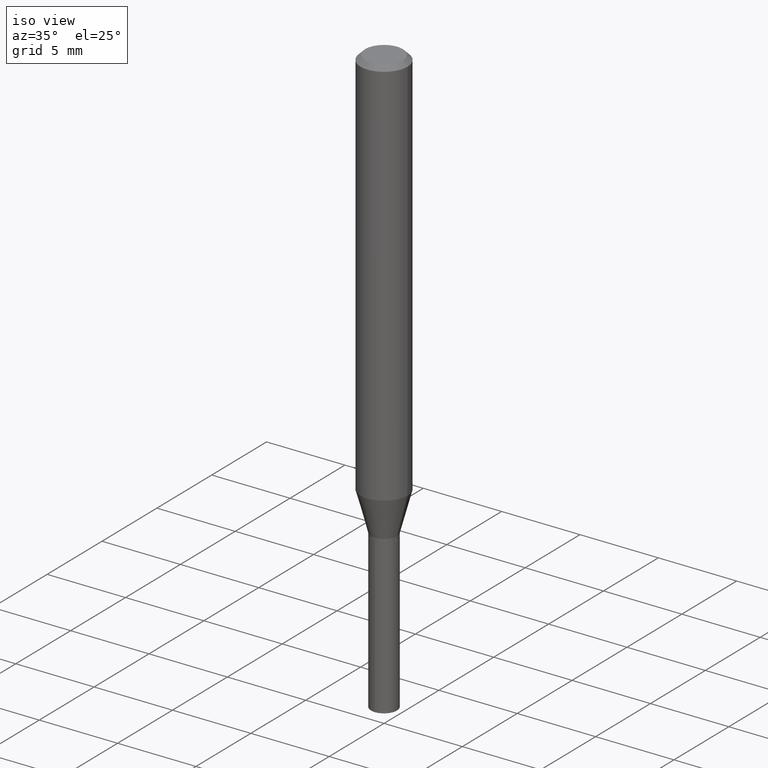
[diagram: clean part render]
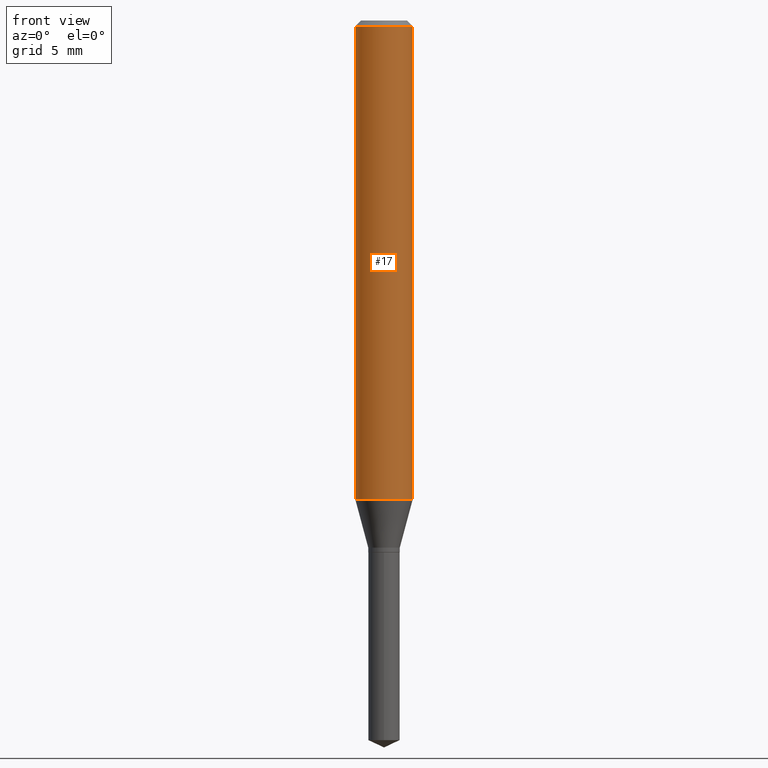
[diagram: tour spotlight — one face highlighted and labeled with its STEP entity id]
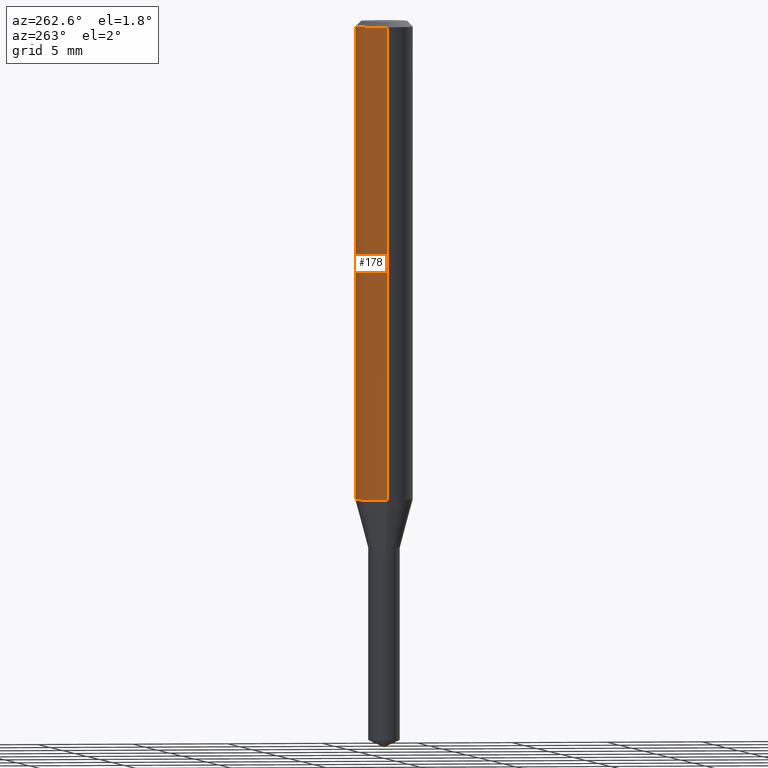
[diagram: tour spotlight — one face highlighted and labeled with its STEP entity id]
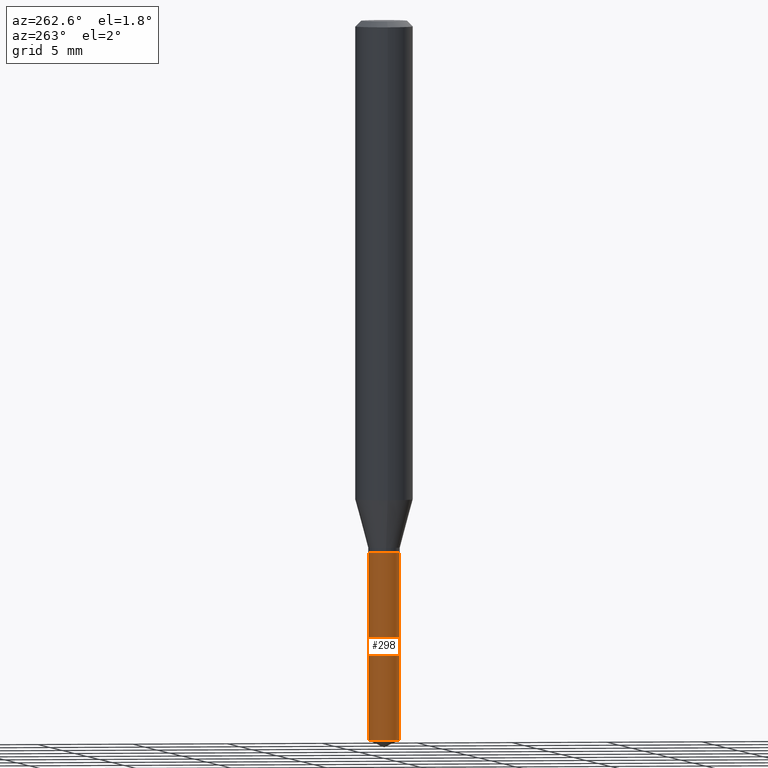
[diagram: tour spotlight — one face highlighted and labeled with its STEP entity id]
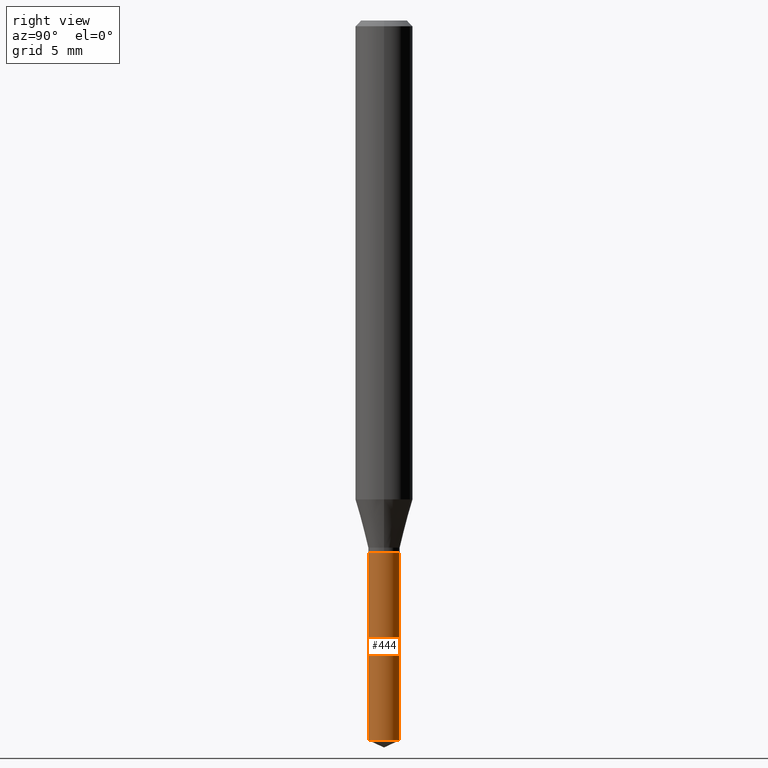
[diagram: tour spotlight — one face highlighted and labeled with its STEP entity id]
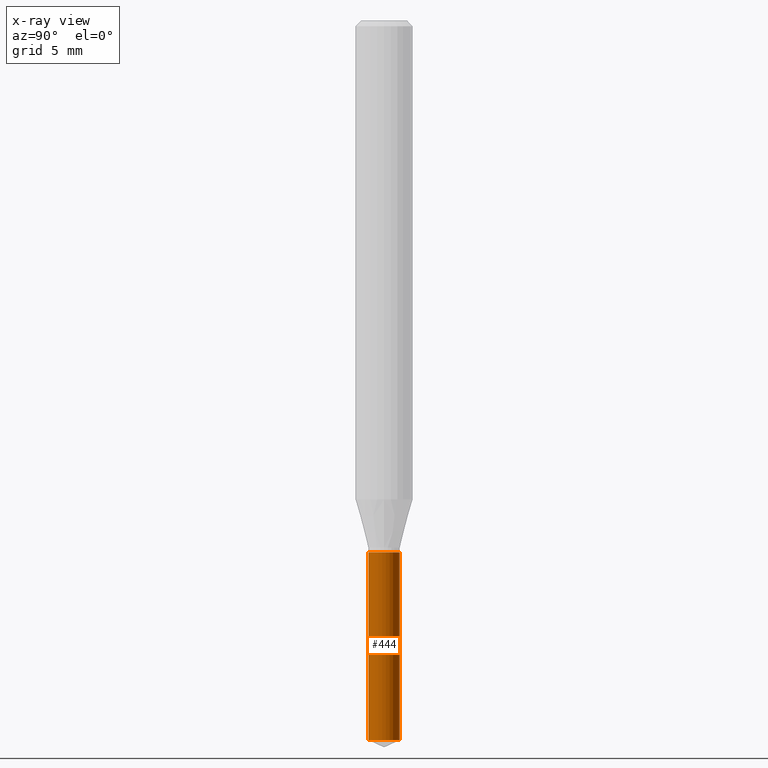
[diagram: x-ray of the same camera — body ghosted, this tour face saturated]
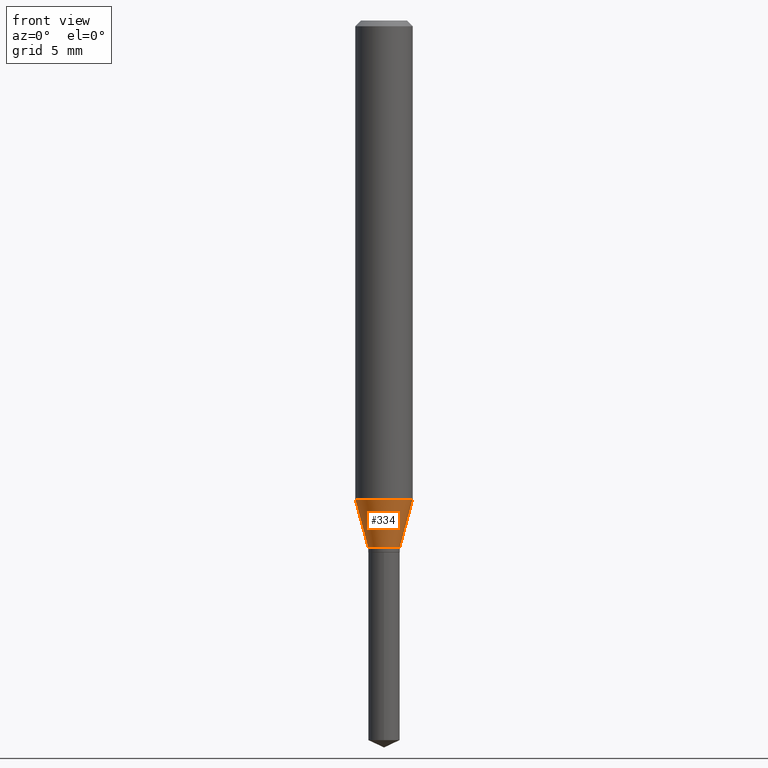
[diagram: tour spotlight — one face highlighted and labeled with its STEP entity id]
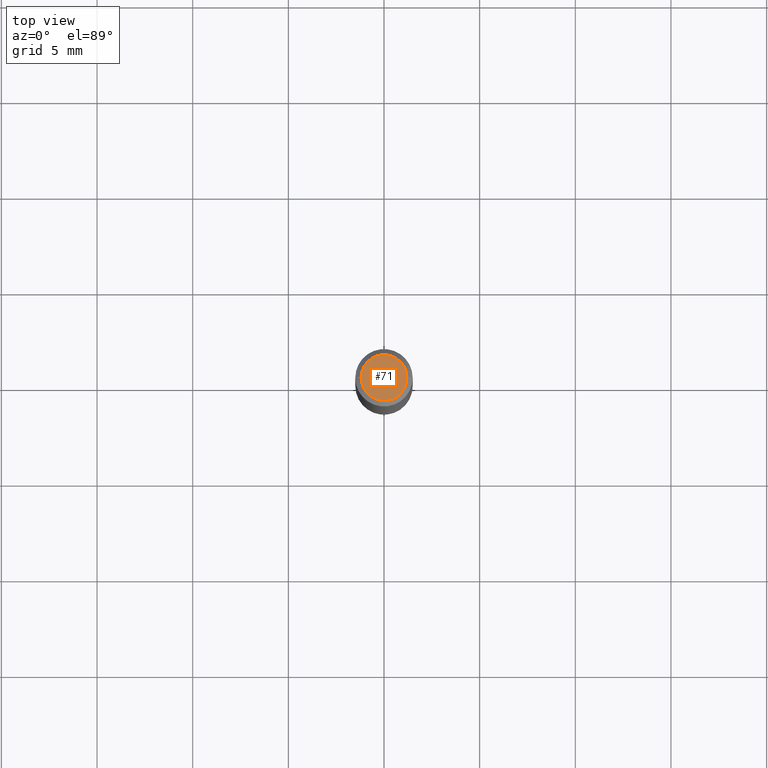
[diagram: tour spotlight — one face highlighted and labeled with its STEP entity id]
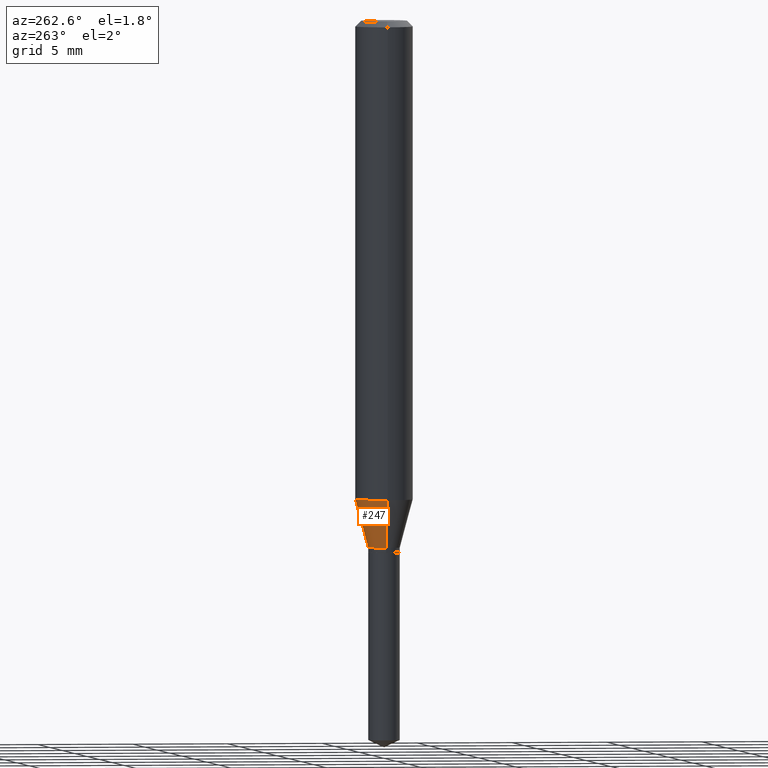
[diagram: tour spotlight — one face highlighted and labeled with its STEP entity id]
A machine part: a face-by-face anatomy tour. The part has 17 B-rep faces; the first image is the clean iso view, then the 7 largest visible faces are spotlighted one at a time (largest first), each with its STEP entity span.

Face 1 — front view, entity #17. In plain terms, the highlighted cylindrical surface (edge-blend (fillet) strip) has radius 1.4999 mm, axis along (-0, 0, 1).
Definition (entity closure, byte-faithful):
#5 = CARTESIAN_POINT ( 'NONE',  ( 0.05905000000000006077, -4.123439461173744764E-16, 2.879382386107503023E-30 ) ) ;
#7 = EDGE_CURVE ( 'NONE', #287, #37, #126, .T. ) ;
#9 = DIRECTION ( 'NONE',  ( -2.445468806185136877E-29, 3.491481338843145188E-15, 1.000000000000000000 ) ) ;
#17 = ADVANCED_FACE ( 'NONE', ( #76 ), #235, .T. ) ;
#37 = VERTEX_POINT ( 'NONE', #346 ) ;
#42 = EDGE_CURVE ( 'NONE', #75, #37, #423, .T. ) ;
#62 = CARTESIAN_POINT ( 'NONE',  ( 2.410288416802661241E-29, -3.441253066574253877E-15, -0.9856140510590458703 ) ) ;
#75 = VERTEX_POINT ( 'NONE', #275 ) ;
#76 = FACE_OUTER_BOUND ( 'NONE', #205, .T. ) ;
#81 = VECTOR ( 'NONE', #234, 39.37007874015748143 ) ;
#101 = AXIS2_PLACEMENT_3D ( 'NONE', #62, #290, #214 ) ;
#113 = CARTESIAN_POINT ( 'NONE',  ( -0.05904999999999999832, -1.321668245126655521E-15, -0.01181000000000007218 ) ) ;
#126 = CIRCLE ( 'NONE', #237, 0.05904999999999999832 ) ;
#141 = ORIENTED_EDGE ( 'NONE', *, *, #7, .F. ) ;
#205 = EDGE_LOOP ( 'NONE', ( #238, #422, #392, #141 ) ) ;
#214 = DIRECTION ( 'NONE',  ( 1.000000000000000000, -6.982962677686266711E-15, 0.000000000000000000 ) ) ;
#234 = DIRECTION ( 'NONE',  ( -2.445468806185136877E-29, 3.491481338843145188E-15, 1.000000000000000000 ) ) ;
#235 = CYLINDRICAL_SURFACE ( 'NONE', #481, 0.05905000000000006077 ) ;
#237 = AXIS2_PLACEMENT_3D ( 'NONE', #268, #461, #271 ) ;
#238 = ORIENTED_EDGE ( 'NONE', *, *, #314, .F. ) ;
#239 = DIRECTION ( 'NONE',  ( 1.000000000000000000, -6.982962677686266711E-15, 4.876176775795935793E-29 ) ) ;
#263 = CARTESIAN_POINT ( 'NONE',  ( -0.05905000000000011628, -3.021677581107914384E-15, -0.9856140510590458703 ) ) ;
#268 = CARTESIAN_POINT ( 'NONE',  ( 2.888098660104664204E-31, -4.123439461173780263E-17, -0.01181000000000007218 ) ) ;
#271 = DIRECTION ( 'NONE',  ( 1.000000000000000000, -6.982962677686266711E-15, 0.000000000000000000 ) ) ;
#275 = CARTESIAN_POINT ( 'NONE',  ( 0.05905000000000011628, -3.853597012691628798E-15, -0.9856140510590458703 ) ) ;
#287 = VERTEX_POINT ( 'NONE', #113 ) ;
#289 = EDGE_CURVE ( 'NONE', #427, #75, #335, .T. ) ;
#290 = DIRECTION ( 'NONE',  ( -2.445468806185136597E-29, 3.491481338843145583E-15, 1.000000000000000000 ) ) ;
#314 = EDGE_CURVE ( 'NONE', #427, #287, #318, .T. ) ;
#318 = LINE ( 'NONE', #391, #81 ) ;
#335 = CIRCLE ( 'NONE', #101, 0.05905000000000011628 ) ;
#346 = CARTESIAN_POINT ( 'NONE',  ( 0.05904999999999999832, -4.535783407291118600E-16, -0.01181000000000007218 ) ) ;
#380 = CARTESIAN_POINT ( 'NONE',  ( 0.000000000000000000, 0.000000000000000000, 0.000000000000000000 ) ) ;
#391 = CARTESIAN_POINT ( 'NONE',  ( -0.05905000000000006077, 4.195754854663395916E-16, -2.904631170795524694E-30 ) ) ;
#392 = ORIENTED_EDGE ( 'NONE', *, *, #42, .T. ) ;
#422 = ORIENTED_EDGE ( 'NONE', *, *, #289, .T. ) ;
#423 = LINE ( 'NONE', #5, #467 ) ;
#427 = VERTEX_POINT ( 'NONE', #263 ) ;
#457 = DIRECTION ( 'NONE',  ( -2.445468806185136597E-29, 3.491481338843145583E-15, 1.000000000000000000 ) ) ;
#461 = DIRECTION ( 'NONE',  ( -2.445468806185136597E-29, 3.491481338843145583E-15, 1.000000000000000000 ) ) ;
#467 = VECTOR ( 'NONE', #9, 39.37007874015748143 ) ;
#481 = AXIS2_PLACEMENT_3D ( 'NONE', #380, #457, #239 ) ;

Face 2 — auxiliary view, entity #178. In plain terms, the highlighted cylindrical surface (edge-blend (fillet) strip) has radius 1.4999 mm, axis along (-0, 0, 1).
Definition (entity closure, byte-faithful):
#5 = CARTESIAN_POINT ( 'NONE',  ( 0.05905000000000006077, -4.123439461173744764E-16, 2.879382386107503023E-30 ) ) ;
#9 = DIRECTION ( 'NONE',  ( -2.445468806185136877E-29, 3.491481338843145188E-15, 1.000000000000000000 ) ) ;
#13 = CIRCLE ( 'NONE', #406, 0.05905000000000011628 ) ;
#21 = EDGE_CURVE ( 'NONE', #37, #287, #54, .T. ) ;
#29 = AXIS2_PLACEMENT_3D ( 'NONE', #388, #278, #35 ) ;
#35 = DIRECTION ( 'NONE',  ( 1.000000000000000000, -6.982962677686266711E-15, 0.000000000000000000 ) ) ;
#37 = VERTEX_POINT ( 'NONE', #346 ) ;
#42 = EDGE_CURVE ( 'NONE', #75, #37, #423, .T. ) ;
#51 = CARTESIAN_POINT ( 'NONE',  ( 2.410288416802661241E-29, -3.441253066574253877E-15, -0.9856140510590458703 ) ) ;
#52 = ORIENTED_EDGE ( 'NONE', *, *, #42, .F. ) ;
#54 = CIRCLE ( 'NONE', #29, 0.05904999999999999832 ) ;
#75 = VERTEX_POINT ( 'NONE', #275 ) ;
#81 = VECTOR ( 'NONE', #234, 39.37007874015748143 ) ;
#84 = CARTESIAN_POINT ( 'NONE',  ( 0.000000000000000000, 0.000000000000000000, 0.000000000000000000 ) ) ;
#113 = CARTESIAN_POINT ( 'NONE',  ( -0.05904999999999999832, -1.321668245126655521E-15, -0.01181000000000007218 ) ) ;
#124 = DIRECTION ( 'NONE',  ( -2.445468806185136597E-29, 3.491481338843145583E-15, 1.000000000000000000 ) ) ;
#135 = CYLINDRICAL_SURFACE ( 'NONE', #443, 0.05905000000000006077 ) ;
#158 = EDGE_CURVE ( 'NONE', #75, #427, #13, .T. ) ;
#159 = DIRECTION ( 'NONE',  ( -2.445468806185136597E-29, 3.491481338843145583E-15, 1.000000000000000000 ) ) ;
#178 = ADVANCED_FACE ( 'NONE', ( #463 ), #135, .T. ) ;
#197 = ORIENTED_EDGE ( 'NONE', *, *, #21, .F. ) ;
#234 = DIRECTION ( 'NONE',  ( -2.445468806185136877E-29, 3.491481338843145188E-15, 1.000000000000000000 ) ) ;
#263 = CARTESIAN_POINT ( 'NONE',  ( -0.05905000000000011628, -3.021677581107914384E-15, -0.9856140510590458703 ) ) ;
#275 = CARTESIAN_POINT ( 'NONE',  ( 0.05905000000000011628, -3.853597012691628798E-15, -0.9856140510590458703 ) ) ;
#277 = ORIENTED_EDGE ( 'NONE', *, *, #314, .T. ) ;
#278 = DIRECTION ( 'NONE',  ( -2.445468806185136597E-29, 3.491481338843145583E-15, 1.000000000000000000 ) ) ;
#279 = DIRECTION ( 'NONE',  ( 1.000000000000000000, -6.982962677686266711E-15, 4.876176775795935793E-29 ) ) ;
#287 = VERTEX_POINT ( 'NONE', #113 ) ;
#314 = EDGE_CURVE ( 'NONE', #427, #287, #318, .T. ) ;
#318 = LINE ( 'NONE', #391, #81 ) ;
#346 = CARTESIAN_POINT ( 'NONE',  ( 0.05904999999999999832, -4.535783407291118600E-16, -0.01181000000000007218 ) ) ;
#356 = ORIENTED_EDGE ( 'NONE', *, *, #158, .T. ) ;
#377 = EDGE_LOOP ( 'NONE', ( #356, #277, #197, #52 ) ) ;
#388 = CARTESIAN_POINT ( 'NONE',  ( 2.888098660104664204E-31, -4.123439461173780263E-17, -0.01181000000000007218 ) ) ;
#391 = CARTESIAN_POINT ( 'NONE',  ( -0.05905000000000006077, 4.195754854663395916E-16, -2.904631170795524694E-30 ) ) ;
#406 = AXIS2_PLACEMENT_3D ( 'NONE', #51, #124, #473 ) ;
#423 = LINE ( 'NONE', #5, #467 ) ;
#427 = VERTEX_POINT ( 'NONE', #263 ) ;
#443 = AXIS2_PLACEMENT_3D ( 'NONE', #84, #159, #279 ) ;
#463 = FACE_OUTER_BOUND ( 'NONE', #377, .T. ) ;
#467 = VECTOR ( 'NONE', #9, 39.37007874015748143 ) ;
#473 = DIRECTION ( 'NONE',  ( 1.000000000000000000, -6.982962677686266711E-15, 0.000000000000000000 ) ) ;

Face 3 — auxiliary view, entity #298. In plain terms, the highlighted cylindrical surface (edge-blend (fillet) strip) has radius 0.8255 mm, axis along (-0, 0, 1).
Definition (entity closure, byte-faithful):
#27 = CARTESIAN_POINT ( 'NONE',  ( 2.676565608369631794E-29, -3.821426325363822773E-15, -1.094499999999999806 ) ) ;
#28 = VERTEX_POINT ( 'NONE', #195 ) ;
#31 = DIRECTION ( 'NONE',  ( -2.445402730703145379E-29, 3.491575962694140016E-15, 1.000000000000000000 ) ) ;
#47 = ORIENTED_EDGE ( 'NONE', *, *, #229, .F. ) ;
#66 = FACE_OUTER_BOUND ( 'NONE', #476, .T. ) ;
#79 = DIRECTION ( 'NONE',  ( -2.445402730703145379E-29, 3.491575962694140016E-15, 1.000000000000000000 ) ) ;
#132 = DIRECTION ( 'NONE',  ( -2.445402730703145379E-29, 3.491575962694140016E-15, 1.000000000000000000 ) ) ;
#146 = DIRECTION ( 'NONE',  ( -6.982962677686265922E-15, -1.000000000000000000, 4.202843067175789324E-15 ) ) ;
#147 = LINE ( 'NONE', #297, #264 ) ;
#151 = ORIENTED_EDGE ( 'NONE', *, *, #410, .T. ) ;
#172 = CARTESIAN_POINT ( 'NONE',  ( -2.269462870247674594E-16, -0.03250000000000517059, -1.480945001109962522 ) ) ;
#173 = EDGE_CURVE ( 'NONE', #186, #28, #196, .T. ) ;
#174 = DIRECTION ( 'NONE',  ( -6.982962677686265922E-15, -1.000000000000000000, 0.000000000000000000 ) ) ;
#186 = VERTEX_POINT ( 'NONE', #245 ) ;
#195 = CARTESIAN_POINT ( 'NONE',  ( -2.269462870247768764E-16, -0.03250000000000381750, -1.094499999999999806 ) ) ;
#196 = CIRCLE ( 'NONE', #262, 0.03250000000000000111 ) ;
#208 = CARTESIAN_POINT ( 'NONE',  ( 2.676565608369631794E-29, -3.821426325363822773E-15, -1.094499999999999806 ) ) ;
#226 = VERTEX_POINT ( 'NONE', #172 ) ;
#228 = DIRECTION ( 'NONE',  ( -2.445402730703145379E-29, 3.491575962694140016E-15, 1.000000000000000000 ) ) ;
#229 = EDGE_CURVE ( 'NONE', #333, #186, #252, .T. ) ;
#232 = EDGE_CURVE ( 'NONE', #333, #226, #349, .T. ) ;
#245 = CARTESIAN_POINT ( 'NONE',  ( 2.309263891220687573E-16, 0.03249999999999617778, -1.094500000000000028 ) ) ;
#252 = LINE ( 'NONE', #462, #305 ) ;
#262 = AXIS2_PLACEMENT_3D ( 'NONE', #208, #132, #420 ) ;
#264 = VECTOR ( 'NONE', #448, 39.37007874015748143 ) ;
#297 = CARTESIAN_POINT ( 'NONE',  ( -2.269462870247768764E-16, -0.03250000000000381750, -1.094499999999999806 ) ) ;
#298 = ADVANCED_FACE ( 'NONE', ( #66 ), #401, .T. ) ;
#300 = AXIS2_PLACEMENT_3D ( 'NONE', #407, #228, #174 ) ;
#305 = VECTOR ( 'NONE', #79, 39.37007874015748143 ) ;
#327 = ORIENTED_EDGE ( 'NONE', *, *, #232, .T. ) ;
#333 = VERTEX_POINT ( 'NONE', #421 ) ;
#349 = CIRCLE ( 'NONE', #300, 0.03250000000000000111 ) ;
#401 = CYLINDRICAL_SURFACE ( 'NONE', #412, 0.03250000000000000111 ) ;
#407 = CARTESIAN_POINT ( 'NONE',  ( 3.621579269350513779E-29, -5.170728402142678552E-15, -1.480945001109962522 ) ) ;
#410 = EDGE_CURVE ( 'NONE', #226, #28, #147, .T. ) ;
#412 = AXIS2_PLACEMENT_3D ( 'NONE', #27, #31, #146 ) ;
#420 = DIRECTION ( 'NONE',  ( -6.982962677686265922E-15, -1.000000000000000000, 4.202843067175789324E-15 ) ) ;
#421 = CARTESIAN_POINT ( 'NONE',  ( 2.309263891220687573E-16, 0.03249999999999483163, -1.480945001109962522 ) ) ;
#448 = DIRECTION ( 'NONE',  ( -2.445402730703145379E-29, 3.491575962694140016E-15, 1.000000000000000000 ) ) ;
#460 = ORIENTED_EDGE ( 'NONE', *, *, #173, .F. ) ;
#462 = CARTESIAN_POINT ( 'NONE',  ( 2.309263891220592910E-16, 0.03249999999999617778, -1.094500000000000028 ) ) ;
#476 = EDGE_LOOP ( 'NONE', ( #47, #327, #151, #460 ) ) ;

Face 4 — right view, entity #444. An x-ray twin of the same camera follows (body ghosted, this face saturated) — the face is partly hidden behind the body. In plain terms, the highlighted cylindrical surface (edge-blend (fillet) strip) has radius 0.8255 mm, axis along (-0, 0, 1).
Definition (entity closure, byte-faithful):
#4 = CARTESIAN_POINT ( 'NONE',  ( 3.621579269350513779E-29, -5.170728402142678552E-15, -1.480945001109962522 ) ) ;
#14 = AXIS2_PLACEMENT_3D ( 'NONE', #331, #188, #299 ) ;
#26 = ORIENTED_EDGE ( 'NONE', *, *, #229, .T. ) ;
#28 = VERTEX_POINT ( 'NONE', #195 ) ;
#74 = DIRECTION ( 'NONE',  ( -2.445402730703145379E-29, 3.491575962694140016E-15, 1.000000000000000000 ) ) ;
#79 = DIRECTION ( 'NONE',  ( -2.445402730703145379E-29, 3.491575962694140016E-15, 1.000000000000000000 ) ) ;
#121 = DIRECTION ( 'NONE',  ( -2.445402730703145379E-29, 3.491575962694140016E-15, 1.000000000000000000 ) ) ;
#127 = CIRCLE ( 'NONE', #259, 0.03250000000000000111 ) ;
#142 = ORIENTED_EDGE ( 'NONE', *, *, #410, .F. ) ;
#147 = LINE ( 'NONE', #297, #264 ) ;
#172 = CARTESIAN_POINT ( 'NONE',  ( -2.269462870247674594E-16, -0.03250000000000517059, -1.480945001109962522 ) ) ;
#186 = VERTEX_POINT ( 'NONE', #245 ) ;
#187 = CYLINDRICAL_SURFACE ( 'NONE', #14, 0.03250000000000000111 ) ;
#188 = DIRECTION ( 'NONE',  ( -2.445402730703145379E-29, 3.491575962694140016E-15, 1.000000000000000000 ) ) ;
#195 = CARTESIAN_POINT ( 'NONE',  ( -2.269462870247768764E-16, -0.03250000000000381750, -1.094499999999999806 ) ) ;
#210 = CARTESIAN_POINT ( 'NONE',  ( 2.676565608369631794E-29, -3.821426325363822773E-15, -1.094499999999999806 ) ) ;
#226 = VERTEX_POINT ( 'NONE', #172 ) ;
#229 = EDGE_CURVE ( 'NONE', #333, #186, #252, .T. ) ;
#244 = EDGE_CURVE ( 'NONE', #28, #186, #430, .T. ) ;
#245 = CARTESIAN_POINT ( 'NONE',  ( 2.309263891220687573E-16, 0.03249999999999617778, -1.094500000000000028 ) ) ;
#252 = LINE ( 'NONE', #462, #305 ) ;
#259 = AXIS2_PLACEMENT_3D ( 'NONE', #4, #121, #416 ) ;
#264 = VECTOR ( 'NONE', #448, 39.37007874015748143 ) ;
#297 = CARTESIAN_POINT ( 'NONE',  ( -2.269462870247768764E-16, -0.03250000000000381750, -1.094499999999999806 ) ) ;
#299 = DIRECTION ( 'NONE',  ( -6.982962677686265922E-15, -1.000000000000000000, 4.202843067175789324E-15 ) ) ;
#302 = EDGE_LOOP ( 'NONE', ( #307, #26, #371, #142 ) ) ;
#305 = VECTOR ( 'NONE', #79, 39.37007874015748143 ) ;
#307 = ORIENTED_EDGE ( 'NONE', *, *, #326, .T. ) ;
#326 = EDGE_CURVE ( 'NONE', #226, #333, #127, .T. ) ;
#331 = CARTESIAN_POINT ( 'NONE',  ( 2.676565608369631794E-29, -3.821426325363822773E-15, -1.094499999999999806 ) ) ;
#333 = VERTEX_POINT ( 'NONE', #421 ) ;
#344 = DIRECTION ( 'NONE',  ( -6.982962677686265922E-15, -1.000000000000000000, 4.202843067175789324E-15 ) ) ;
#361 = AXIS2_PLACEMENT_3D ( 'NONE', #210, #74, #344 ) ;
#371 = ORIENTED_EDGE ( 'NONE', *, *, #244, .F. ) ;
#405 = FACE_OUTER_BOUND ( 'NONE', #302, .T. ) ;
#410 = EDGE_CURVE ( 'NONE', #226, #28, #147, .T. ) ;
#416 = DIRECTION ( 'NONE',  ( -6.982962677686265922E-15, -1.000000000000000000, 0.000000000000000000 ) ) ;
#421 = CARTESIAN_POINT ( 'NONE',  ( 2.309263891220687573E-16, 0.03249999999999483163, -1.480945001109962522 ) ) ;
#430 = CIRCLE ( 'NONE', #361, 0.03250000000000000111 ) ;
#444 = ADVANCED_FACE ( 'NONE', ( #405 ), #187, .T. ) ;
#448 = DIRECTION ( 'NONE',  ( -2.445402730703145379E-29, 3.491575962694140016E-15, 1.000000000000000000 ) ) ;
#462 = CARTESIAN_POINT ( 'NONE',  ( 2.309263891220592910E-16, 0.03249999999999617778, -1.094500000000000028 ) ) ;

Face 5 — front view, entity #334. In plain terms, the highlighted conical surface has half-angle 15 deg.
Definition (entity closure, byte-faithful):
#3 = CARTESIAN_POINT ( 'NONE',  ( 0.03249999999999998723, -4.014156095267963078E-15, -1.084699999999999998 ) ) ;
#10 = FACE_OUTER_BOUND ( 'NONE', #426, .T. ) ;
#19 = LINE ( 'NONE', #384, #175 ) ;
#24 = AXIS2_PLACEMENT_3D ( 'NONE', #78, #83, #48 ) ;
#41 = CONICAL_SURFACE ( 'NONE', #164, 0.03249999999999998723, 0.2617993877991499074 ) ;
#48 = DIRECTION ( 'NONE',  ( 1.000000000000000000, -6.982962677686261189E-15, 0.000000000000000000 ) ) ;
#53 = EDGE_CURVE ( 'NONE', #411, #254, #393, .T. ) ;
#62 = CARTESIAN_POINT ( 'NONE',  ( 2.410288416802661241E-29, -3.441253066574253877E-15, -0.9856140510590458703 ) ) ;
#67 = EDGE_CURVE ( 'NONE', #254, #75, #85, .T. ) ;
#75 = VERTEX_POINT ( 'NONE', #275 ) ;
#77 = EDGE_CURVE ( 'NONE', #411, #427, #19, .T. ) ;
#78 = CARTESIAN_POINT ( 'NONE',  ( 2.652600014069017258E-29, -3.787209808243159726E-15, -1.084699999999999998 ) ) ;
#83 = DIRECTION ( 'NONE',  ( -2.445468806185136597E-29, 3.491481338843145583E-15, 1.000000000000000000 ) ) ;
#85 = LINE ( 'NONE', #3, #181 ) ;
#101 = AXIS2_PLACEMENT_3D ( 'NONE', #62, #290, #214 ) ;
#108 = CARTESIAN_POINT ( 'NONE',  ( -0.03249999999999998723, -3.572518807346747732E-15, -1.084699999999999998 ) ) ;
#136 = ORIENTED_EDGE ( 'NONE', *, *, #289, .F. ) ;
#164 = AXIS2_PLACEMENT_3D ( 'NONE', #312, #350, #167 ) ;
#167 = DIRECTION ( 'NONE',  ( 1.000000000000000000, -6.982962677686261189E-15, 0.000000000000000000 ) ) ;
#175 = VECTOR ( 'NONE', #253, 39.37007874015748854 ) ;
#181 = VECTOR ( 'NONE', #236, 39.37007874015748854 ) ;
#214 = DIRECTION ( 'NONE',  ( 1.000000000000000000, -6.982962677686266711E-15, 0.000000000000000000 ) ) ;
#236 = DIRECTION ( 'NONE',  ( 0.2588190451025211836, 1.565188264969622559E-15, 0.9659258262890679791 ) ) ;
#253 = DIRECTION ( 'NONE',  ( -0.2588190451025211836, 5.211531920934547886E-15, 0.9659258262890679791 ) ) ;
#254 = VERTEX_POINT ( 'NONE', #397 ) ;
#263 = CARTESIAN_POINT ( 'NONE',  ( -0.05905000000000011628, -3.021677581107914384E-15, -0.9856140510590458703 ) ) ;
#275 = CARTESIAN_POINT ( 'NONE',  ( 0.05905000000000011628, -3.853597012691628798E-15, -0.9856140510590458703 ) ) ;
#289 = EDGE_CURVE ( 'NONE', #427, #75, #335, .T. ) ;
#290 = DIRECTION ( 'NONE',  ( -2.445468806185136597E-29, 3.491481338843145583E-15, 1.000000000000000000 ) ) ;
#312 = CARTESIAN_POINT ( 'NONE',  ( 2.652600014069017258E-29, -3.787209808243159726E-15, -1.084699999999999998 ) ) ;
#334 = ADVANCED_FACE ( 'NONE', ( #10 ), #41, .T. ) ;
#335 = CIRCLE ( 'NONE', #101, 0.05905000000000011628 ) ;
#345 = ORIENTED_EDGE ( 'NONE', *, *, #77, .F. ) ;
#350 = DIRECTION ( 'NONE',  ( -2.445468806185136597E-29, 3.491481338843145583E-15, 1.000000000000000000 ) ) ;
#360 = ORIENTED_EDGE ( 'NONE', *, *, #53, .T. ) ;
#366 = ORIENTED_EDGE ( 'NONE', *, *, #67, .T. ) ;
#384 = CARTESIAN_POINT ( 'NONE',  ( -0.03249999999999998723, -3.556283419121127355E-15, -1.084699999999999998 ) ) ;
#393 = CIRCLE ( 'NONE', #24, 0.03249999999999998723 ) ;
#397 = CARTESIAN_POINT ( 'NONE',  ( 0.03249999999999998723, -4.014156095267963078E-15, -1.084699999999999998 ) ) ;
#411 = VERTEX_POINT ( 'NONE', #108 ) ;
#426 = EDGE_LOOP ( 'NONE', ( #345, #360, #366, #136 ) ) ;
#427 = VERTEX_POINT ( 'NONE', #263 ) ;

Face 6 — top view, entity #71. In plain terms, the highlighted planar face has unit normal (0, -0, -1).
Definition (entity closure, byte-faithful):
#2 = DIRECTION ( 'NONE',  ( 1.000000000000000000, -6.982962677686266711E-15, 4.876185090822587894E-29 ) ) ;
#23 = CARTESIAN_POINT ( 'NONE',  ( 8.265746106709734507E-48, -1.180129479067563789E-33, -3.380025165646692144E-19 ) ) ;
#43 = CARTESIAN_POINT ( 'NONE',  ( 4.132873053354867254E-48, -5.900647395337818946E-34, -1.690012582823346072E-19 ) ) ;
#56 = CARTESIAN_POINT ( 'NONE',  ( -0.04724000000000000421, 3.504923541997677355E-16, -3.380025165670481712E-19 ) ) ;
#71 = ADVANCED_FACE ( 'NONE', ( #414 ), #382, .F. ) ;
#91 = VERTEX_POINT ( 'NONE', #56 ) ;
#110 = DIRECTION ( 'NONE',  ( -2.445468806185136597E-29, 3.491481338843145583E-15, 1.000000000000000000 ) ) ;
#123 = DIRECTION ( 'NONE',  ( -1.000000000000000000, 6.982962677686265922E-15, -4.876176775795935793E-29 ) ) ;
#137 = AXIS2_PLACEMENT_3D ( 'NONE', #43, #200, #123 ) ;
#200 = DIRECTION ( 'NONE',  ( 2.438088387897960049E-29, -3.491481338843145188E-15, -1.000000000000000000 ) ) ;
#221 = ORIENTED_EDGE ( 'NONE', *, *, #272, .T. ) ;
#224 = CARTESIAN_POINT ( 'NONE',  ( 0.04724000000000000421, -3.852183633974369345E-16, -3.380025165621689721E-19 ) ) ;
#249 = ORIENTED_EDGE ( 'NONE', *, *, #454, .T. ) ;
#265 = DIRECTION ( 'NONE',  ( 1.000000000000000000, -6.982962677686266711E-15, 4.876185090822587894E-29 ) ) ;
#272 = EDGE_CURVE ( 'NONE', #394, #91, #284, .T. ) ;
#284 = CIRCLE ( 'NONE', #368, 0.04724000000000000421 ) ;
#319 = AXIS2_PLACEMENT_3D ( 'NONE', #449, #110, #265 ) ;
#347 = EDGE_LOOP ( 'NONE', ( #249, #221 ) ) ;
#368 = AXIS2_PLACEMENT_3D ( 'NONE', #23, #480, #2 ) ;
#382 = PLANE ( 'NONE',  #137 ) ;
#394 = VERTEX_POINT ( 'NONE', #224 ) ;
#414 = FACE_OUTER_BOUND ( 'NONE', #347, .T. ) ;
#449 = CARTESIAN_POINT ( 'NONE',  ( 8.265746106709734507E-48, -1.180129479067563789E-33, -3.380025165646692144E-19 ) ) ;
#454 = EDGE_CURVE ( 'NONE', #91, #394, #490, .T. ) ;
#480 = DIRECTION ( 'NONE',  ( -2.445468806185136597E-29, 3.491481338843145583E-15, 1.000000000000000000 ) ) ;
#490 = CIRCLE ( 'NONE', #319, 0.04724000000000000421 ) ;

Face 7 — auxiliary view, entity #247. In plain terms, the highlighted conical surface has half-angle 15 deg.
Definition (entity closure, byte-faithful):
#3 = CARTESIAN_POINT ( 'NONE',  ( 0.03249999999999998723, -4.014156095267963078E-15, -1.084699999999999998 ) ) ;
#13 = CIRCLE ( 'NONE', #406, 0.05905000000000011628 ) ;
#19 = LINE ( 'NONE', #384, #175 ) ;
#20 = ORIENTED_EDGE ( 'NONE', *, *, #77, .T. ) ;
#34 = ORIENTED_EDGE ( 'NONE', *, *, #158, .F. ) ;
#51 = CARTESIAN_POINT ( 'NONE',  ( 2.410288416802661241E-29, -3.441253066574253877E-15, -0.9856140510590458703 ) ) ;
#65 = EDGE_LOOP ( 'NONE', ( #134, #20, #34, #351 ) ) ;
#67 = EDGE_CURVE ( 'NONE', #254, #75, #85, .T. ) ;
#75 = VERTEX_POINT ( 'NONE', #275 ) ;
#77 = EDGE_CURVE ( 'NONE', #411, #427, #19, .T. ) ;
#85 = LINE ( 'NONE', #3, #181 ) ;
#89 = DIRECTION ( 'NONE',  ( -2.445468806185136597E-29, 3.491481338843145583E-15, 1.000000000000000000 ) ) ;
#92 = AXIS2_PLACEMENT_3D ( 'NONE', #233, #255, #286 ) ;
#93 = FACE_OUTER_BOUND ( 'NONE', #65, .T. ) ;
#108 = CARTESIAN_POINT ( 'NONE',  ( -0.03249999999999998723, -3.572518807346747732E-15, -1.084699999999999998 ) ) ;
#124 = DIRECTION ( 'NONE',  ( -2.445468806185136597E-29, 3.491481338843145583E-15, 1.000000000000000000 ) ) ;
#134 = ORIENTED_EDGE ( 'NONE', *, *, #474, .T. ) ;
#158 = EDGE_CURVE ( 'NONE', #75, #427, #13, .T. ) ;
#175 = VECTOR ( 'NONE', #253, 39.37007874015748854 ) ;
#181 = VECTOR ( 'NONE', #236, 39.37007874015748854 ) ;
#216 = CONICAL_SURFACE ( 'NONE', #92, 0.03249999999999998723, 0.2617993877991499074 ) ;
#233 = CARTESIAN_POINT ( 'NONE',  ( 2.652600014069017258E-29, -3.787209808243159726E-15, -1.084699999999999998 ) ) ;
#236 = DIRECTION ( 'NONE',  ( 0.2588190451025211836, 1.565188264969622559E-15, 0.9659258262890679791 ) ) ;
#247 = ADVANCED_FACE ( 'NONE', ( #93 ), #216, .T. ) ;
#248 = AXIS2_PLACEMENT_3D ( 'NONE', #256, #89, #273 ) ;
#253 = DIRECTION ( 'NONE',  ( -0.2588190451025211836, 5.211531920934547886E-15, 0.9659258262890679791 ) ) ;
#254 = VERTEX_POINT ( 'NONE', #397 ) ;
#255 = DIRECTION ( 'NONE',  ( -2.445468806185136597E-29, 3.491481338843145583E-15, 1.000000000000000000 ) ) ;
#256 = CARTESIAN_POINT ( 'NONE',  ( 2.652600014069017258E-29, -3.787209808243159726E-15, -1.084699999999999998 ) ) ;
#263 = CARTESIAN_POINT ( 'NONE',  ( -0.05905000000000011628, -3.021677581107914384E-15, -0.9856140510590458703 ) ) ;
#273 = DIRECTION ( 'NONE',  ( 1.000000000000000000, -6.982962677686261189E-15, 0.000000000000000000 ) ) ;
#275 = CARTESIAN_POINT ( 'NONE',  ( 0.05905000000000011628, -3.853597012691628798E-15, -0.9856140510590458703 ) ) ;
#286 = DIRECTION ( 'NONE',  ( 1.000000000000000000, -6.982962677686261189E-15, 0.000000000000000000 ) ) ;
#351 = ORIENTED_EDGE ( 'NONE', *, *, #67, .F. ) ;
#384 = CARTESIAN_POINT ( 'NONE',  ( -0.03249999999999998723, -3.556283419121127355E-15, -1.084699999999999998 ) ) ;
#397 = CARTESIAN_POINT ( 'NONE',  ( 0.03249999999999998723, -4.014156095267963078E-15, -1.084699999999999998 ) ) ;
#406 = AXIS2_PLACEMENT_3D ( 'NONE', #51, #124, #473 ) ;
#411 = VERTEX_POINT ( 'NONE', #108 ) ;
#419 = CIRCLE ( 'NONE', #248, 0.03249999999999998723 ) ;
#427 = VERTEX_POINT ( 'NONE', #263 ) ;
#473 = DIRECTION ( 'NONE',  ( 1.000000000000000000, -6.982962677686266711E-15, 0.000000000000000000 ) ) ;
#474 = EDGE_CURVE ( 'NONE', #254, #411, #419, .T. ) ;